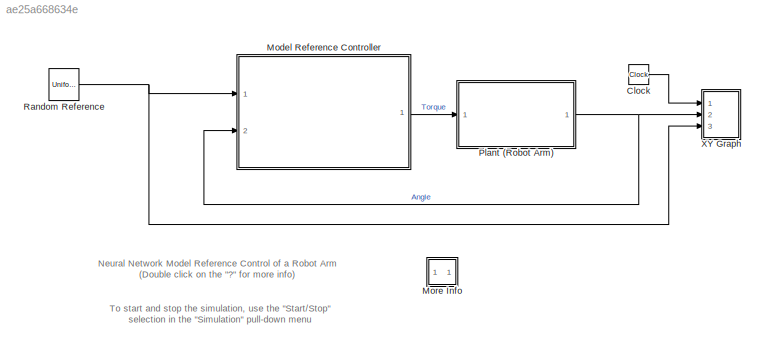
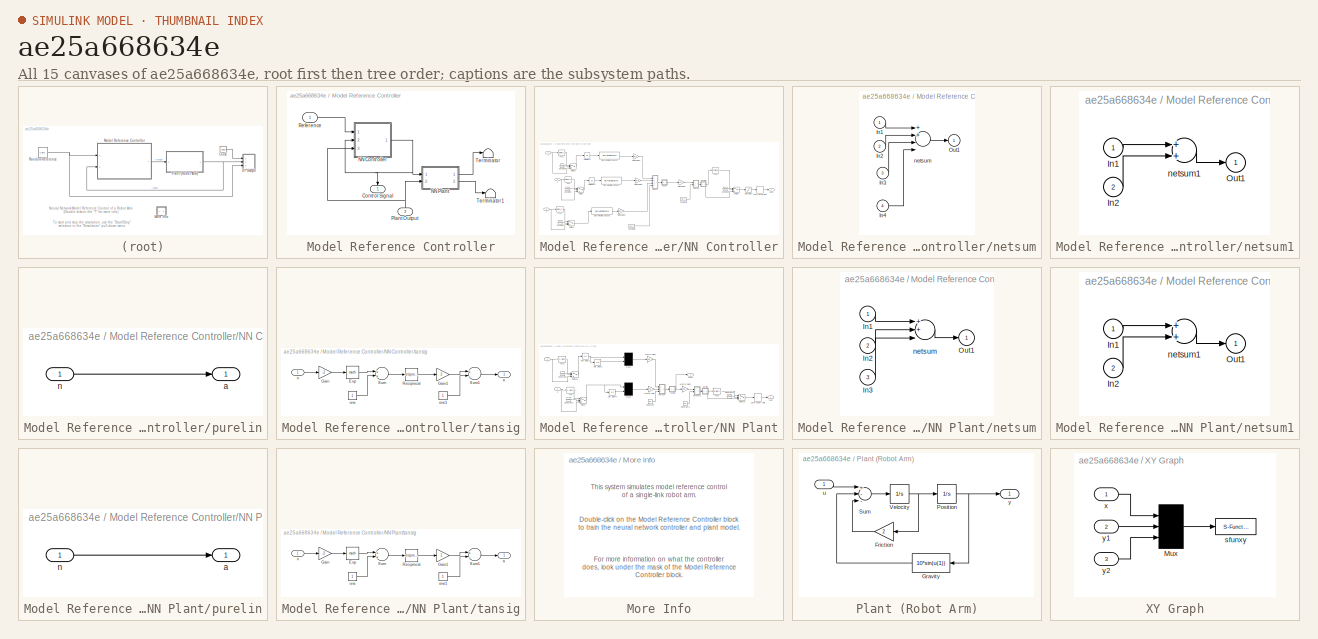
[diagram: thumbnail index - all 15 canvases of the model, root first then tree order]
MODEL slx_ae25a668634e
KIND model
BLOCK [Clock] Clock
BLOCK [SubSystem] Model Reference Controller
  OpenFcn = nncontrolutil('nnmodref','',gcbh,gcb,'');
  Ports = [2, 1]
  RequestExecContextInheritance = off
BLOCK [Outport] Model Reference Controller/Control Signal
  IconDisplay = Port number
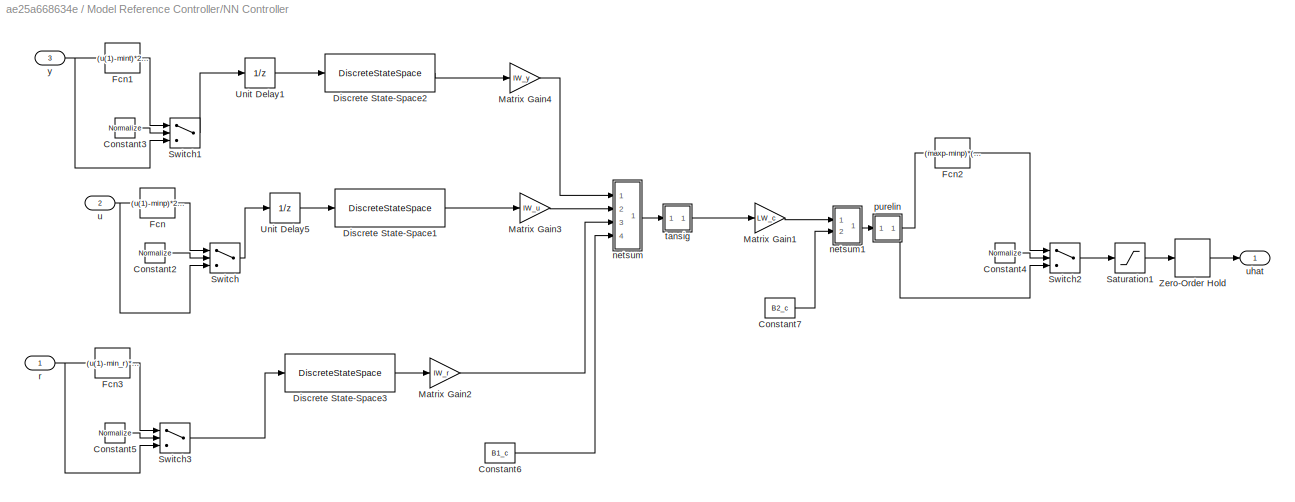
BLOCK [SubSystem] Model Reference Controller/NN Controller
  Ports = [3, 1]
  RequestExecContextInheritance = off
BLOCK [Constant] Model Reference Controller/NN Controller/Constant2
  Value = Normalize
BLOCK [Constant] Model Reference Controller/NN Controller/Constant3
  Value = Normalize
BLOCK [Constant] Model Reference Controller/NN Controller/Constant4
  Value = Normalize
BLOCK [Constant] Model Reference Controller/NN Controller/Constant5
  Value = Normalize
BLOCK [Constant] Model Reference Controller/NN Controller/Constant6
  Value = B1_c
BLOCK [Constant] Model Reference Controller/NN Controller/Constant7
  Value = B2_c
BLOCK [DiscreteStateSpace] Model Reference Controller/NN Controller/Discrete State-Space1
  A = [zeros(1,max([Nic-1 1]));eye(Nic-2,Nic-1)]
  B = eye(max([Nic-1 1]),1)
  C = [zeros(1,max([Nic-1 1]));eye(Nic-1,Nic-1)]
  D = eye(Nic,1)
  SampleTime = Ts
BLOCK [DiscreteStateSpace] Model Reference Controller/NN Controller/Discrete State-Space2
  A = [zeros(1,max([Njc-1 1]));eye(Njc-2,Njc-1)]
  B = eye(max([Njc-1 1]),1)
  C = [zeros(1,max([Njc-1 1]));eye(Njc-1,Njc-1)]
  D = eye(Njc,1)
  SampleTime = Ts
BLOCK [DiscreteStateSpace] Model Reference Controller/NN Controller/Discrete State-Space3
  A = [zeros(1,max([Nrc-1 1]));eye(Nrc-2,Nrc-1)]
  B = eye(max([Nrc-1 1]),1)
  C = [zeros(1,max([Nrc-1 1]));eye(Nrc-1,Nrc-1)]
  D = eye(Nrc,1)
  SampleTime = Ts
BLOCK [Fcn] Model Reference Controller/NN Controller/Fcn
  Expr = (u(1)-minp)*2/(maxp-minp) - 1
BLOCK [Fcn] Model Reference Controller/NN Controller/Fcn1
  Expr = (u(1)-mint)*2/(maxt-mint) - 1
BLOCK [Fcn] Model Reference Controller/NN Controller/Fcn2
  Expr = (maxp-minp)*(u(1)+1)/2 + minp
BLOCK [Fcn] Model Reference Controller/NN Controller/Fcn3
  Expr = (u(1)-min_r)*2/(max_r-min_r) - 1
BLOCK [Gain] Model Reference Controller/NN Controller/Matrix Gain1
  Gain = LW_c
  Multiplication = Matrix(K*u)
BLOCK [Gain] Model Reference Controller/NN Controller/Matrix Gain2
  Gain = IW_r
  Multiplication = Matrix(K*u)
BLOCK [Gain] Model Reference Controller/NN Controller/Matrix Gain3
  Gain = IW_u
  Multiplication = Matrix(K*u)
BLOCK [Gain] Model Reference Controller/NN Controller/Matrix Gain4
  Gain = IW_y
  Multiplication = Matrix(K*u)
BLOCK [Saturate] Model Reference Controller/NN Controller/Saturation1
  InputPortMap = u0
  LowerLimit = min_i
  Ports = [1, 1]
  UpperLimit = max_i
BLOCK [Switch] Model Reference Controller/NN Controller/Switch
  Threshold = 0.5
BLOCK [Switch] Model Reference Controller/NN Controller/Switch1
  Threshold = 0.5
BLOCK [Switch] Model Reference Controller/NN Controller/Switch2
  Threshold = 0.5
BLOCK [Switch] Model Reference Controller/NN Controller/Switch3
  Threshold = 0.5
BLOCK [UnitDelay] Model Reference Controller/NN Controller/Unit Delay1
  SampleTime = Ts
BLOCK [UnitDelay] Model Reference Controller/NN Controller/Unit Delay5
  SampleTime = Ts
BLOCK [ZeroOrderHold] Model Reference Controller/NN Controller/Zero-Order Hold
  SampleTime = Ts
BLOCK [SubSystem] Model Reference Controller/NN Controller/netsum
  Ports = [4, 1]
  RequestExecContextInheritance = off
BLOCK [Inport] Model Reference Controller/NN Controller/netsum/In1
  IconDisplay = Port number
BLOCK [Inport] Model Reference Controller/NN Controller/netsum/In2
  IconDisplay = Port number
  Port = 2
BLOCK [Inport] Model Reference Controller/NN Controller/netsum/In3
  IconDisplay = Port number
  Port = 3
BLOCK [Inport] Model Reference Controller/NN Controller/netsum/In4
  IconDisplay = Port number
  Port = 4
BLOCK [Outport] Model Reference Controller/NN Controller/netsum/Out1
  IconDisplay = Port number
BLOCK [Sum] Model Reference Controller/NN Controller/netsum/netsum
  Inputs = 4
  Ports = [4, 1]
BLOCK [SubSystem] Model Reference Controller/NN Controller/netsum1
  Ports = [2, 1]
  RequestExecContextInheritance = off
BLOCK [Inport] Model Reference Controller/NN Controller/netsum1/In1
  IconDisplay = Port number
BLOCK [Inport] Model Reference Controller/NN Controller/netsum1/In2
  IconDisplay = Port number
  Port = 2
BLOCK [Outport] Model Reference Controller/NN Controller/netsum1/Out1
  IconDisplay = Port number
BLOCK [Sum] Model Reference Controller/NN Controller/netsum1/netsum1
  Inputs = 2
  Ports = [2, 1]
BLOCK [SubSystem] Model Reference Controller/NN Controller/purelin
  Ports = [1, 1]
  RequestExecContextInheritance = off
BLOCK [Outport] Model Reference Controller/NN Controller/purelin/a
  IconDisplay = Port number
BLOCK [Inport] Model Reference Controller/NN Controller/purelin/n
  IconDisplay = Port number
BLOCK [Inport] Model Reference Controller/NN Controller/r
  IconDisplay = Port number
BLOCK [SubSystem] Model Reference Controller/NN Controller/tansig
  Ports = [1, 1]
  RequestExecContextInheritance = off
BLOCK [Math] Model Reference Controller/NN Controller/tansig/Exp
  Ports = [1, 1]
BLOCK [Gain] Model Reference Controller/NN Controller/tansig/Gain
  Gain = -2
BLOCK [Gain] Model Reference Controller/NN Controller/tansig/Gain1
  Gain = 2
BLOCK [Math] Model Reference Controller/NN Controller/tansig/Reciprocal
  Operator = reciprocal
  Ports = [1, 1]
BLOCK [Sum] Model Reference Controller/NN Controller/tansig/Sum
  Ports = [2, 1]
BLOCK [Sum] Model Reference Controller/NN Controller/tansig/Sum1
  Inputs = +-
  Ports = [2, 1]
BLOCK [Outport] Model Reference Controller/NN Controller/tansig/a
  IconDisplay = Port number
BLOCK [Inport] Model Reference Controller/NN Controller/tansig/n
  IconDisplay = Port number
BLOCK [Constant] Model Reference Controller/NN Controller/tansig/one
BLOCK [Constant] Model Reference Controller/NN Controller/tansig/one1
BLOCK [Inport] Model Reference Controller/NN Controller/u
  IconDisplay = Port number
  Port = 2
BLOCK [Outport] Model Reference Controller/NN Controller/uhat
  IconDisplay = Port number
BLOCK [Inport] Model Reference Controller/NN Controller/y
  IconDisplay = Port number
  Port = 3
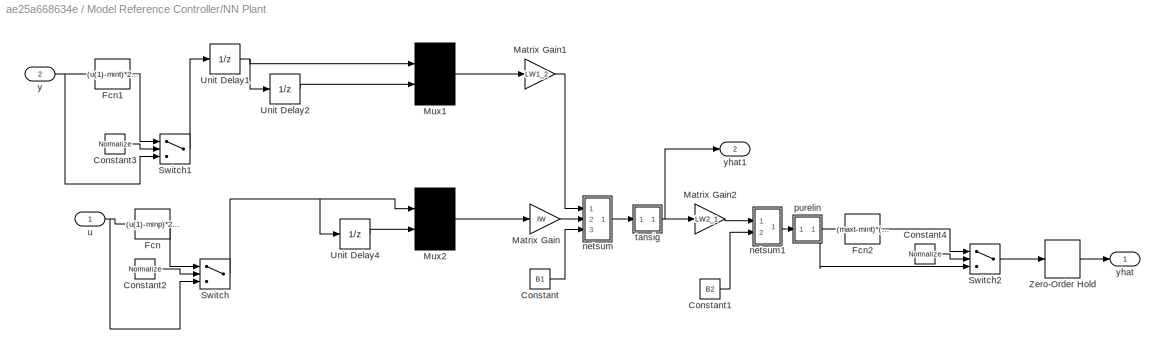
BLOCK [SubSystem] Model Reference Controller/NN Plant
  Ports = [2, 2]
  RequestExecContextInheritance = off
BLOCK [Constant] Model Reference Controller/NN Plant/Constant
  Value = B1
BLOCK [Constant] Model Reference Controller/NN Plant/Constant1
  Value = B2
BLOCK [Constant] Model Reference Controller/NN Plant/Constant2
  Value = Normalize
BLOCK [Constant] Model Reference Controller/NN Plant/Constant3
  Value = Normalize
BLOCK [Constant] Model Reference Controller/NN Plant/Constant4
  Value = Normalize
BLOCK [Fcn] Model Reference Controller/NN Plant/Fcn
  Expr = (u(1)-minp)*2/(maxp-minp) - 1
BLOCK [Fcn] Model Reference Controller/NN Plant/Fcn1
  Expr = (u(1)-mint)*2/(maxt-mint) - 1
BLOCK [Fcn] Model Reference Controller/NN Plant/Fcn2
  Expr = (maxt-mint)*(u(1)+1)/2 + mint
BLOCK [Gain] Model Reference Controller/NN Plant/Matrix Gain
  Gain = IW
  Multiplication = Matrix(K*u)
BLOCK [Gain] Model Reference Controller/NN Plant/Matrix Gain1
  Gain = LW1_2
  Multiplication = Matrix(K*u)
BLOCK [Gain] Model Reference Controller/NN Plant/Matrix Gain2
  Gain = LW2_1
  Multiplication = Matrix(K*u)
BLOCK [Mux] Model Reference Controller/NN Plant/Mux1
  DisplayOption = signals
  Inputs = 2
  Ports = [2, 1]
BLOCK [Mux] Model Reference Controller/NN Plant/Mux2
  DisplayOption = signals
  Inputs = 2
  Ports = [2, 1]
BLOCK [Switch] Model Reference Controller/NN Plant/Switch
  Threshold = 0.5
BLOCK [Switch] Model Reference Controller/NN Plant/Switch1
  Threshold = 0.5
BLOCK [Switch] Model Reference Controller/NN Plant/Switch2
  Threshold = 0.5
BLOCK [UnitDelay] Model Reference Controller/NN Plant/Unit Delay1
  SampleTime = Ts
BLOCK [UnitDelay] Model Reference Controller/NN Plant/Unit Delay2
  SampleTime = Ts
BLOCK [UnitDelay] Model Reference Controller/NN Plant/Unit Delay4
  SampleTime = Ts
BLOCK [ZeroOrderHold] Model Reference Controller/NN Plant/Zero-Order Hold
  SampleTime = Ts
BLOCK [SubSystem] Model Reference Controller/NN Plant/netsum
  Ports = [3, 1]
  RequestExecContextInheritance = off
BLOCK [Inport] Model Reference Controller/NN Plant/netsum/In1
  IconDisplay = Port number
BLOCK [Inport] Model Reference Controller/NN Plant/netsum/In2
  IconDisplay = Port number
  Port = 2
BLOCK [Inport] Model Reference Controller/NN Plant/netsum/In3
  IconDisplay = Port number
  Port = 3
BLOCK [Outport] Model Reference Controller/NN Plant/netsum/Out1
  IconDisplay = Port number
BLOCK [Sum] Model Reference Controller/NN Plant/netsum/netsum
  Inputs = 3
  Ports = [3, 1]
BLOCK [SubSystem] Model Reference Controller/NN Plant/netsum1
  Ports = [2, 1]
  RequestExecContextInheritance = off
BLOCK [Inport] Model Reference Controller/NN Plant/netsum1/In1
  IconDisplay = Port number
BLOCK [Inport] Model Reference Controller/NN Plant/netsum1/In2
  IconDisplay = Port number
  Port = 2
BLOCK [Outport] Model Reference Controller/NN Plant/netsum1/Out1
  IconDisplay = Port number
BLOCK [Sum] Model Reference Controller/NN Plant/netsum1/netsum1
  Inputs = 2
  Ports = [2, 1]
BLOCK [SubSystem] Model Reference Controller/NN Plant/purelin
  Ports = [1, 1]
  RequestExecContextInheritance = off
BLOCK [Outport] Model Reference Controller/NN Plant/purelin/a
  IconDisplay = Port number
BLOCK [Inport] Model Reference Controller/NN Plant/purelin/n
  IconDisplay = Port number
BLOCK [SubSystem] Model Reference Controller/NN Plant/tansig
  Ports = [1, 1]
  RequestExecContextInheritance = off
BLOCK [Math] Model Reference Controller/NN Plant/tansig/Exp
  Ports = [1, 1]
BLOCK [Gain] Model Reference Controller/NN Plant/tansig/Gain
  Gain = -2
BLOCK [Gain] Model Reference Controller/NN Plant/tansig/Gain1
  Gain = 2
BLOCK [Math] Model Reference Controller/NN Plant/tansig/Reciprocal
  Operator = reciprocal
  Ports = [1, 1]
BLOCK [Sum] Model Reference Controller/NN Plant/tansig/Sum
  Ports = [2, 1]
BLOCK [Sum] Model Reference Controller/NN Plant/tansig/Sum1
  Inputs = +-
  Ports = [2, 1]
BLOCK [Outport] Model Reference Controller/NN Plant/tansig/a
  IconDisplay = Port number
BLOCK [Inport] Model Reference Controller/NN Plant/tansig/n
  IconDisplay = Port number
BLOCK [Constant] Model Reference Controller/NN Plant/tansig/one
BLOCK [Constant] Model Reference Controller/NN Plant/tansig/one1
BLOCK [Inport] Model Reference Controller/NN Plant/u
  IconDisplay = Port number
BLOCK [Inport] Model Reference Controller/NN Plant/y
  IconDisplay = Port number
  Port = 2
BLOCK [Outport] Model Reference Controller/NN Plant/yhat
  IconDisplay = Port number
BLOCK [Outport] Model Reference Controller/NN Plant/yhat1
  IconDisplay = Port number
  Port = 2
BLOCK [Inport] Model Reference Controller/Plant Output
  IconDisplay = Port number
  Port = 2
BLOCK [Inport] Model Reference Controller/Reference
  IconDisplay = Port number
BLOCK [Terminator] Model Reference Controller/Terminator
BLOCK [Terminator] Model Reference Controller/Terminator1
BLOCK [SubSystem] More Info
  Ports = []
  RequestExecContextInheritance = off
BLOCK [SubSystem] Plant (Robot Arm)
  Ports = [1, 1]
  RequestExecContextInheritance = off
BLOCK [Gain] Plant (Robot Arm)/Friction
  Gain = 2
BLOCK [Fcn] Plant (Robot Arm)/Gravity
  Expr = 10*sin(u(1))
BLOCK [Integrator] Plant (Robot Arm)/Position
  Ports = [1, 1]
BLOCK [Sum] Plant (Robot Arm)/Sum
  Inputs = +--
  Ports = [3, 1]
BLOCK [Integrator] Plant (Robot Arm)/Velocity
  Ports = [1, 1]
BLOCK [Inport] Plant (Robot Arm)/u
  IconDisplay = Port number
BLOCK [Outport] Plant (Robot Arm)/y
  IconDisplay = Port number
BLOCK [UniformRandomNumber] Random Reference
  Maximum = 0.5
  Minimum = -0.5
  SampleTime = 10
  Seed = round(now)
BLOCK [SubSystem] XY Graph
  CopyFcn = sfunxy2([],[],[],'CopyBlock')
  DeleteFcn = sfunxy2([],[],[],'DeleteBlock')
  LoadFcn = sfunxy2([],[],[],'LoadBlock')
  NameChangeFcn = sfunxy2([],[],[],'NameChange')
  Ports = [3]
  RequestExecContextInheritance = off
  StartFcn = sfunxy2([],[],[],'Start')
  StopFcn = sfunxy2([],[],[],'Stop')
BLOCK [Mux] XY Graph/Mux
  Inputs = 3
  Ports = [3, 1]
BLOCK [S-Function] XY Graph/sfunxy
  EnableBusSupport = off
  FunctionName = sfunxy2
  Parameters = [xmin xmax ymin ymax], st
  Ports = [1]
BLOCK [Inport] XY Graph/x
  IconDisplay = Port number
BLOCK [Inport] XY Graph/y1
  IconDisplay = Port number
  Port = 2
BLOCK [Inport] XY Graph/y2
  IconDisplay = Port number
  Port = 3
ANNOTATION (root): Neural Network Model Reference Control of a Robot Arm (Double click on the "?" for more info)
ANNOTATION (root): To start and stop the simulation, use the "Start/Stop" selection in the "Simulation" pull-down menu
ANNOTATION More Info: Double-click on the Model Reference Controller block to train the neural network controller and plant model.
ANNOTATION More Info: For more information on what the controller does, look under the mask of the Model Reference Controller block.
ANNOTATION More Info: This system simulates model reference control of a single-link robot arm.
LINE Clock:1 -> XY Graph:1
LINE Model Reference Controller/NN Controller/Constant2:1 -> Model Reference Controller/NN Controller/Switch:2
LINE Model Reference Controller/NN Controller/Constant3:1 -> Model Reference Controller/NN Controller/Switch1:2
LINE Model Reference Controller/NN Controller/Constant4:1 -> Model Reference Controller/NN Controller/Switch2:2
LINE Model Reference Controller/NN Controller/Constant5:1 -> Model Reference Controller/NN Controller/Switch3:2
LINE Model Reference Controller/NN Controller/Constant6:1 -> Model Reference Controller/NN Controller/netsum:4
LINE Model Reference Controller/NN Controller/Constant7:1 -> Model Reference Controller/NN Controller/netsum1:2
LINE Model Reference Controller/NN Controller/Discrete State-Space1:1 -> Model Reference Controller/NN Controller/Matrix Gain3:1
LINE Model Reference Controller/NN Controller/Discrete State-Space2:1 -> Model Reference Controller/NN Controller/Matrix Gain4:1
LINE Model Reference Controller/NN Controller/Discrete State-Space3:1 -> Model Reference Controller/NN Controller/Matrix Gain2:1
LINE Model Reference Controller/NN Controller/Fcn1:1 -> Model Reference Controller/NN Controller/Switch1:1
LINE Model Reference Controller/NN Controller/Fcn2:1 -> Model Reference Controller/NN Controller/Switch2:1
LINE Model Reference Controller/NN Controller/Fcn3:1 -> Model Reference Controller/NN Controller/Switch3:1
LINE Model Reference Controller/NN Controller/Fcn:1 -> Model Reference Controller/NN Controller/Switch:1
LINE Model Reference Controller/NN Controller/Matrix Gain1:1 -> Model Reference Controller/NN Controller/netsum1:1
LINE Model Reference Controller/NN Controller/Matrix Gain2:1 -> Model Reference Controller/NN Controller/netsum:3
LINE Model Reference Controller/NN Controller/Matrix Gain3:1 -> Model Reference Controller/NN Controller/netsum:2
LINE Model Reference Controller/NN Controller/Matrix Gain4:1 -> Model Reference Controller/NN Controller/netsum:1
LINE Model Reference Controller/NN Controller/Saturation1:1 -> Model Reference Controller/NN Controller/Zero-Order Hold:1
LINE Model Reference Controller/NN Controller/Switch1:1 -> Model Reference Controller/NN Controller/Unit Delay1:1
LINE Model Reference Controller/NN Controller/Switch2:1 -> Model Reference Controller/NN Controller/Saturation1:1
LINE Model Reference Controller/NN Controller/Switch3:1 -> Model Reference Controller/NN Controller/Discrete State-Space3:1
LINE Model Reference Controller/NN Controller/Switch:1 -> Model Reference Controller/NN Controller/Unit Delay5:1
LINE Model Reference Controller/NN Controller/Unit Delay1:1 -> Model Reference Controller/NN Controller/Discrete State-Space2:1
LINE Model Reference Controller/NN Controller/Unit Delay5:1 -> Model Reference Controller/NN Controller/Discrete State-Space1:1
LINE Model Reference Controller/NN Controller/Zero-Order Hold:1 -> Model Reference Controller/NN Controller/uhat:1
LINE Model Reference Controller/NN Controller/netsum/In1:1 -> Model Reference Controller/NN Controller/netsum/netsum:1
LINE Model Reference Controller/NN Controller/netsum/In2:1 -> Model Reference Controller/NN Controller/netsum/netsum:2
LINE Model Reference Controller/NN Controller/netsum/In3:1 -> Model Reference Controller/NN Controller/netsum/netsum:3
LINE Model Reference Controller/NN Controller/netsum/In4:1 -> Model Reference Controller/NN Controller/netsum/netsum:4
LINE Model Reference Controller/NN Controller/netsum/netsum:1 -> Model Reference Controller/NN Controller/netsum/Out1:1
LINE Model Reference Controller/NN Controller/netsum1/In1:1 -> Model Reference Controller/NN Controller/netsum1/netsum1:1
LINE Model Reference Controller/NN Controller/netsum1/In2:1 -> Model Reference Controller/NN Controller/netsum1/netsum1:2
LINE Model Reference Controller/NN Controller/netsum1/netsum1:1 -> Model Reference Controller/NN Controller/netsum1/Out1:1
LINE Model Reference Controller/NN Controller/netsum1:1 -> Model Reference Controller/NN Controller/purelin:1
LINE Model Reference Controller/NN Controller/netsum:1 -> Model Reference Controller/NN Controller/tansig:1
LINE Model Reference Controller/NN Controller/purelin/n:1 -> Model Reference Controller/NN Controller/purelin/a:1
NET Model Reference Controller/NN Controller/purelin:1 -> Model Reference Controller/NN Controller/Fcn2:1, Model Reference Controller/NN Controller/Switch2:3
NET Model Reference Controller/NN Controller/r:1 -> Model Reference Controller/NN Controller/Fcn3:1, Model Reference Controller/NN Controller/Switch3:3
LINE Model Reference Controller/NN Controller/tansig/Exp:1 -> Model Reference Controller/NN Controller/tansig/Sum:1
LINE Model Reference Controller/NN Controller/tansig/Gain1:1 -> Model Reference Controller/NN Controller/tansig/Sum1:1
LINE Model Reference Controller/NN Controller/tansig/Gain:1 -> Model Reference Controller/NN Controller/tansig/Exp:1
LINE Model Reference Controller/NN Controller/tansig/Reciprocal:1 -> Model Reference Controller/NN Controller/tansig/Gain1:1
LINE Model Reference Controller/NN Controller/tansig/Sum1:1 -> Model Reference Controller/NN Controller/tansig/a:1
LINE Model Reference Controller/NN Controller/tansig/Sum:1 -> Model Reference Controller/NN Controller/tansig/Reciprocal:1
LINE Model Reference Controller/NN Controller/tansig/n:1 -> Model Reference Controller/NN Controller/tansig/Gain:1
LINE Model Reference Controller/NN Controller/tansig/one1:1 -> Model Reference Controller/NN Controller/tansig/Sum1:2
LINE Model Reference Controller/NN Controller/tansig/one:1 -> Model Reference Controller/NN Controller/tansig/Sum:2
LINE Model Reference Controller/NN Controller/tansig:1 -> Model Reference Controller/NN Controller/Matrix Gain1:1
NET Model Reference Controller/NN Controller/u:1 -> Model Reference Controller/NN Controller/Fcn:1, Model Reference Controller/NN Controller/Switch:3
NET Model Reference Controller/NN Controller/y:1 -> Model Reference Controller/NN Controller/Fcn1:1, Model Reference Controller/NN Controller/Switch1:3
NET Model Reference Controller/NN Controller:1 -> Model Reference Controller/Control Signal:1, Model Reference Controller/NN Controller:2, Model Reference Controller/NN Plant:1
LINE Model Reference Controller/NN Plant/Constant1:1 -> Model Reference Controller/NN Plant/netsum1:2
LINE Model Reference Controller/NN Plant/Constant2:1 -> Model Reference Controller/NN Plant/Switch:2
LINE Model Reference Controller/NN Plant/Constant3:1 -> Model Reference Controller/NN Plant/Switch1:2
LINE Model Reference Controller/NN Plant/Constant4:1 -> Model Reference Controller/NN Plant/Switch2:2
LINE Model Reference Controller/NN Plant/Constant:1 -> Model Reference Controller/NN Plant/netsum:3
LINE Model Reference Controller/NN Plant/Fcn1:1 -> Model Reference Controller/NN Plant/Switch1:1
LINE Model Reference Controller/NN Plant/Fcn2:1 -> Model Reference Controller/NN Plant/Switch2:1
LINE Model Reference Controller/NN Plant/Fcn:1 -> Model Reference Controller/NN Plant/Switch:1
LINE Model Reference Controller/NN Plant/Matrix Gain1:1 -> Model Reference Controller/NN Plant/netsum:1
LINE Model Reference Controller/NN Plant/Matrix Gain2:1 -> Model Reference Controller/NN Plant/netsum1:1
LINE Model Reference Controller/NN Plant/Matrix Gain:1 -> Model Reference Controller/NN Plant/netsum:2
LINE Model Reference Controller/NN Plant/Mux1:1 -> Model Reference Controller/NN Plant/Matrix Gain1:1
LINE Model Reference Controller/NN Plant/Mux2:1 -> Model Reference Controller/NN Plant/Matrix Gain:1
LINE Model Reference Controller/NN Plant/Switch1:1 -> Model Reference Controller/NN Plant/Unit Delay1:1
LINE Model Reference Controller/NN Plant/Switch2:1 -> Model Reference Controller/NN Plant/Zero-Order Hold:1
NET Model Reference Controller/NN Plant/Switch:1 -> Model Reference Controller/NN Plant/Mux2:1, Model Reference Controller/NN Plant/Unit Delay4:1
NET Model Reference Controller/NN Plant/Unit Delay1:1 -> Model Reference Controller/NN Plant/Mux1:1, Model Reference Controller/NN Plant/Unit Delay2:1
LINE Model Reference Controller/NN Plant/Unit Delay2:1 -> Model Reference Controller/NN Plant/Mux1:2
LINE Model Reference Controller/NN Plant/Unit Delay4:1 -> Model Reference Controller/NN Plant/Mux2:2
LINE Model Reference Controller/NN Plant/Zero-Order Hold:1 -> Model Reference Controller/NN Plant/yhat:1
LINE Model Reference Controller/NN Plant/netsum/In1:1 -> Model Reference Controller/NN Plant/netsum/netsum:1
LINE Model Reference Controller/NN Plant/netsum/In2:1 -> Model Reference Controller/NN Plant/netsum/netsum:2
LINE Model Reference Controller/NN Plant/netsum/In3:1 -> Model Reference Controller/NN Plant/netsum/netsum:3
LINE Model Reference Controller/NN Plant/netsum/netsum:1 -> Model Reference Controller/NN Plant/netsum/Out1:1
LINE Model Reference Controller/NN Plant/netsum1/In1:1 -> Model Reference Controller/NN Plant/netsum1/netsum1:1
LINE Model Reference Controller/NN Plant/netsum1/In2:1 -> Model Reference Controller/NN Plant/netsum1/netsum1:2
LINE Model Reference Controller/NN Plant/netsum1/netsum1:1 -> Model Reference Controller/NN Plant/netsum1/Out1:1
LINE Model Reference Controller/NN Plant/netsum1:1 -> Model Reference Controller/NN Plant/purelin:1
LINE Model Reference Controller/NN Plant/netsum:1 -> Model Reference Controller/NN Plant/tansig:1
LINE Model Reference Controller/NN Plant/purelin/n:1 -> Model Reference Controller/NN Plant/purelin/a:1
NET Model Reference Controller/NN Plant/purelin:1 -> Model Reference Controller/NN Plant/Fcn2:1, Model Reference Controller/NN Plant/Switch2:3
LINE Model Reference Controller/NN Plant/tansig/Exp:1 -> Model Reference Controller/NN Plant/tansig/Sum:1
LINE Model Reference Controller/NN Plant/tansig/Gain1:1 -> Model Reference Controller/NN Plant/tansig/Sum1:1
LINE Model Reference Controller/NN Plant/tansig/Gain:1 -> Model Reference Controller/NN Plant/tansig/Exp:1
LINE Model Reference Controller/NN Plant/tansig/Reciprocal:1 -> Model Reference Controller/NN Plant/tansig/Gain1:1
LINE Model Reference Controller/NN Plant/tansig/Sum1:1 -> Model Reference Controller/NN Plant/tansig/a:1
LINE Model Reference Controller/NN Plant/tansig/Sum:1 -> Model Reference Controller/NN Plant/tansig/Reciprocal:1
LINE Model Reference Controller/NN Plant/tansig/n:1 -> Model Reference Controller/NN Plant/tansig/Gain:1
LINE Model Reference Controller/NN Plant/tansig/one1:1 -> Model Reference Controller/NN Plant/tansig/Sum1:2
LINE Model Reference Controller/NN Plant/tansig/one:1 -> Model Reference Controller/NN Plant/tansig/Sum:2
NET Model Reference Controller/NN Plant/tansig:1 -> Model Reference Controller/NN Plant/Matrix Gain2:1, Model Reference Controller/NN Plant/yhat1:1
NET Model Reference Controller/NN Plant/u:1 -> Model Reference Controller/NN Plant/Fcn:1, Model Reference Controller/NN Plant/Switch:3
NET Model Reference Controller/NN Plant/y:1 -> Model Reference Controller/NN Plant/Fcn1:1, Model Reference Controller/NN Plant/Switch1:3
LINE Model Reference Controller/NN Plant:1 -> Model Reference Controller/Terminator:1
LINE Model Reference Controller/NN Plant:2 -> Model Reference Controller/Terminator1:1
NET Model Reference Controller/Plant Output:1 -> Model Reference Controller/NN Controller:3, Model Reference Controller/NN Plant:2
LINE Model Reference Controller/Reference:1 -> Model Reference Controller/NN Controller:1
LINE Model Reference Controller:1 -> Plant (Robot Arm):1
LINE Plant (Robot Arm)/Friction:1 -> Plant (Robot Arm)/Sum:3
LINE Plant (Robot Arm)/Gravity:1 -> Plant (Robot Arm)/Sum:2
NET Plant (Robot Arm)/Position:1 -> Plant (Robot Arm)/Gravity:1, Plant (Robot Arm)/y:1
LINE Plant (Robot Arm)/Sum:1 -> Plant (Robot Arm)/Velocity:1
NET Plant (Robot Arm)/Velocity:1 -> Plant (Robot Arm)/Friction:1, Plant (Robot Arm)/Position:1
LINE Plant (Robot Arm)/u:1 -> Plant (Robot Arm)/Sum:1
NET Plant (Robot Arm):1 -> Model Reference Controller:2, XY Graph:2
NET Random Reference:1 -> Model Reference Controller:1, XY Graph:3
note: NET lines group one-source signal fan-out (src -> all destinations, sorted); 1:1 wires keep LINE
